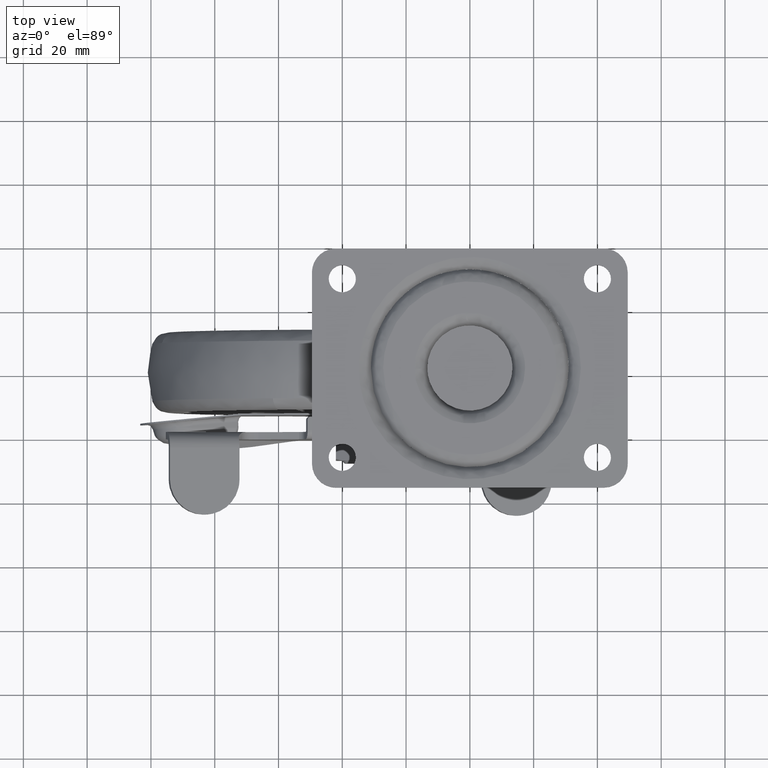
[diagram: clean part render]
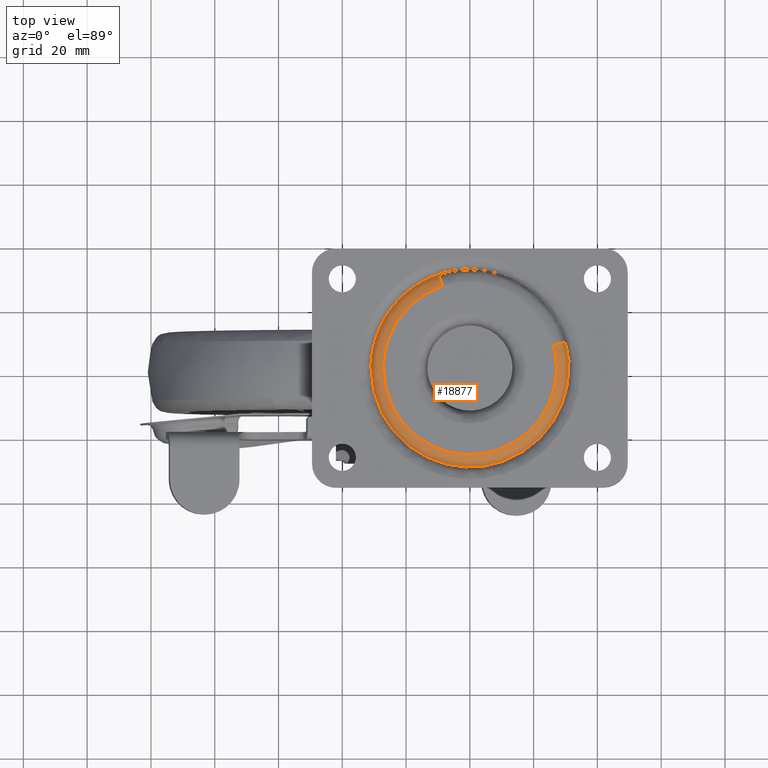
[diagram: same view with one face highlighted and labeled with its STEP entity id]
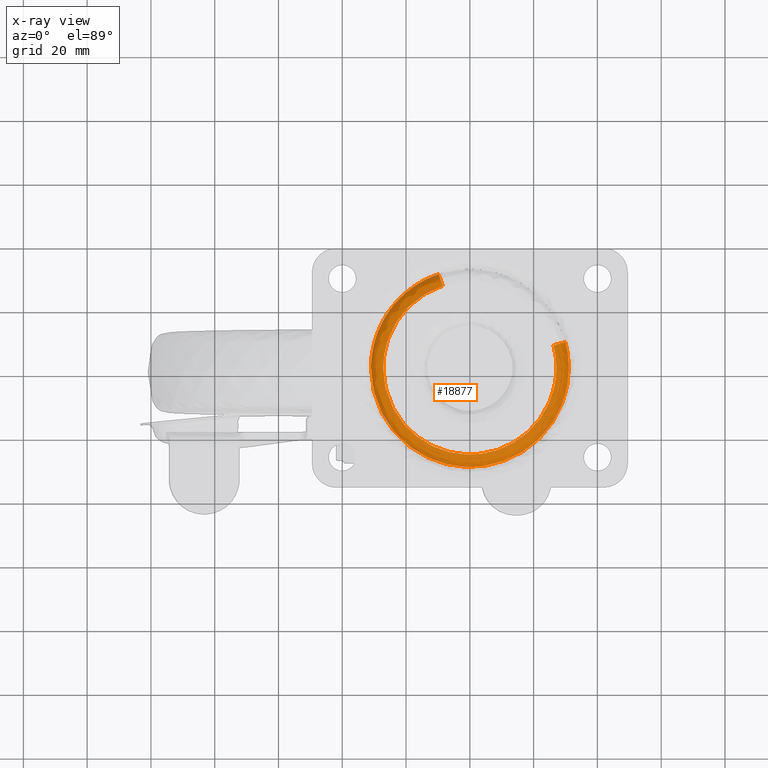
[diagram: x-ray of the same camera — body ghosted, the highlighted face saturated]
A machine part, top view. The second image highlights one B-rep face of the part: STEP entity #18877.
The next image is the same camera in x-ray: the body ghosted, the highlighted face saturated — about 0% of this face is hidden behind the body in this view.
In plain terms, the highlighted face is a freeform B-spline surface patch.
Its self-contained STEP definition (entity closure, byte-faithful):
#18722=CARTESIAN_POINT('',(-9.802953998279872,29.471057452146862,-3.130439594061851));
#18723=CARTESIAN_POINT('',(-37.634048480728175,20.213604122682199,-3.130439594061850));
#18724=CARTESIAN_POINT('',(-29.983472111068334,-8.101390905574176,-3.130439594061850));
#18725=CARTESIAN_POINT('',(-21.882081205494153,-38.084863016642508,-3.130439594061850));
#18726=CARTESIAN_POINT('',(8.101390905574174,-29.983472111068334,-3.130439594061850));
#18727=CARTESIAN_POINT('',(38.084863016642508,-21.882081205494138,-3.130439594061850));
#18728=CARTESIAN_POINT('',(29.983472111068341,8.101390905574156,-3.130439594061850));
#18729=CARTESIAN_POINT('',(-9.569151849163472,28.768167632378866,0.195560131003921));
#18730=CARTESIAN_POINT('',(-36.736469912442651,19.731506166688479,0.195560131003921));
#18731=CARTESIAN_POINT('',(-29.268361113019232,-7.908171330649346,0.195560131003922));
#18732=CARTESIAN_POINT('',(-21.360189782369876,-37.176532443668570,0.195560131003921));
#18733=CARTESIAN_POINT('',(7.908171330649345,-29.268361113019232,0.195560131003922));
#18734=CARTESIAN_POINT('',(37.176532443668570,-21.360189782369858,0.195560131003921));
#18735=CARTESIAN_POINT('',(29.268361113019232,7.908171330649330,0.195560131003922));
#18736=CARTESIAN_POINT('',(-8.495559464767652,25.540579004882673,-0.007079348434209));
#18737=CARTESIAN_POINT('',(-32.614893105086153,17.517768200447730,-0.007079348434209));
#18738=CARTESIAN_POINT('',(-25.984654250594296,-7.020929425733320,-0.007079348434209));
#18739=CARTESIAN_POINT('',(-18.963724824860986,-33.005583676327625,-0.007079348434209));
#18740=CARTESIAN_POINT('',(7.020929425733318,-25.984654250594296,-0.007079348434209));
#18741=CARTESIAN_POINT('',(33.005583676327639,-18.963724824860968,-0.007079348434209));
#18742=CARTESIAN_POINT('',(25.984654250594307,7.020929425733304,-0.007079348434209));
#18750=(BOUNDED_SURFACE()B_SPLINE_SURFACE(2,2,((#18722,#18729,#18736),(#18723,#18730,#18737),(#18724,#18731,#18738),(#18725,#18732,#18739),(#18726,#18733,#18740),(#18727,#18734,#18741),(#18728,#18735,#18742)),.UNSPECIFIED.,.F.,.F.,.U.)B_SPLINE_SURFACE_WITH_KNOTS((3,2,2,3),(3,3),(0.0,49.401305697223783,100.860999131831900,152.320692566439990),(0.0,5.891097441082348),.UNSPECIFIED.)GEOMETRIC_REPRESENTATION_ITEM()RATIONAL_B_SPLINE_SURFACE(((0.898665265390626,0.684370891272393,0.899388075884291),(0.660846023765494,0.503261670051997,0.661377552532734),(0.919345199444986,0.700119519204601,0.920084643132252),(0.650075224778849,0.495059259670639,0.650598090424420),(0.919345199444986,0.700119519204601,0.920084643132252),(0.650075224778849,0.495059259670639,0.650598090424420),(0.919345199444986,0.700119519204601,0.920084643132252)))REPRESENTATION_ITEM('')SURFACE());
#18751=CARTESIAN_POINT('',(-8.570639329479812,25.766294947004990,-6.302756E-016));
#18752=VERTEX_POINT('',#18751);
#18753=CARTESIAN_POINT('',(-27.154333237034852,0.0,0.0));
#18754=VERTEX_POINT('',#18753);
#18755=CARTESIAN_POINT('',(-8.570639329479812,25.766294947004994,-6.302756E-016));
#18756=CARTESIAN_POINT('',(-27.154333237034844,19.584803259646659,0.0));
#18757=CARTESIAN_POINT('',(-27.154333237034852,0.0,0.0));
#18765=(BOUNDED_CURVE()B_SPLINE_CURVE(2,(#18755,#18756,#18757),.UNSPECIFIED.,.F.,.U.)B_SPLINE_CURVE_WITH_KNOTS((3,3),(0.803659303335559,1.0),.UNSPECIFIED.)CURVE()GEOMETRIC_REPRESENTATION_ITEM()RATIONAL_B_SPLINE_CURVE((0.901255104924515,0.769972565479505,1.0))REPRESENTATION_ITEM(''));
#18766=EDGE_CURVE('',#18752,#18754,#18765,.T.);
#18767=ORIENTED_EDGE('',*,*,#18766,.F.);
#18768=CARTESIAN_POINT('',(-9.784435391543754,29.415384139363809,-2.899614999866334));
#18769=VERTEX_POINT('',#18768);
#18770=CARTESIAN_POINT('',(-9.784435391543754,29.415384139363812,-2.899614999866335));
#18771=CARTESIAN_POINT('',(-9.522564380079372,28.628109648003093,-7.334547E-009));
#18772=CARTESIAN_POINT('',(-8.570639329479812,25.766294947004990,-6.302756E-016));
#18780=(BOUNDED_CURVE()B_SPLINE_CURVE(2,(#18770,#18771,#18772),.UNSPECIFIED.,.F.,.U.)B_SPLINE_CURVE_WITH_KNOTS((3,3),(-1.689710131285980,-0.307730784968661),.UNSPECIFIED.)CURVE()GEOMETRIC_REPRESENTATION_ITEM()RATIONAL_B_SPLINE_CURVE((0.880087032894236,0.702981965780210,0.880744159240382))REPRESENTATION_ITEM(''));
#18781=EDGE_CURVE('',#18769,#18752,#18780,.T.);
#18782=ORIENTED_EDGE('',*,*,#18781,.F.);
#18783=CARTESIAN_POINT('',(-31.0,0.0,-2.899614999999910));
#18784=VERTEX_POINT('',#18783);
#18785=CARTESIAN_POINT('',(-9.784435391543754,29.415384139363812,-2.899614999866335));
#18786=CARTESIAN_POINT('',(-30.999999999999996,22.358453649431009,-2.899614999999911));
#18787=CARTESIAN_POINT('',(-31.0,0.0,-2.899614999999910));
#18795=(BOUNDED_CURVE()B_SPLINE_CURVE(2,(#18785,#18786,#18787),.UNSPECIFIED.,.F.,.U.)B_SPLINE_CURVE_WITH_KNOTS((3,3),(0.803659303332471,1.0),.UNSPECIFIED.)CURVE()GEOMETRIC_REPRESENTATION_ITEM()RATIONAL_B_SPLINE_CURVE((0.901255104928644,0.769972565475887,1.0))REPRESENTATION_ITEM(''));
#18796=EDGE_CURVE('',#18769,#18784,#18795,.T.);
#18797=ORIENTED_EDGE('',*,*,#18796,.T.);
#18798=CARTESIAN_POINT('',(31.0,0.0,-2.899614999999910));
#18799=VERTEX_POINT('',#18798);
#18800=CARTESIAN_POINT('',(-31.0,0.0,-2.899614999999910));
#18801=CARTESIAN_POINT('',(-31.000000000000007,-31.000000000000007,-2.899614999999911));
#18802=CARTESIAN_POINT('',(0.0,-31.0,-2.899614999999910));
#18803=CARTESIAN_POINT('',(31.000000000000007,-31.000000000000007,-2.899614999999911));
#18804=CARTESIAN_POINT('',(31.0,0.0,-2.899614999999910));
#18812=(BOUNDED_CURVE()B_SPLINE_CURVE(2,(#18800,#18801,#18802,#18803,#18804),.UNSPECIFIED.,.F.,.U.)B_SPLINE_CURVE_WITH_KNOTS((3,2,3),(0.0,0.250000000000000,0.500000000000000),.UNSPECIFIED.)CURVE()GEOMETRIC_REPRESENTATION_ITEM()RATIONAL_B_SPLINE_CURVE((1.0,0.707106781186548,1.0,0.707106781186548,1.0))REPRESENTATION_ITEM(''));
#18813=EDGE_CURVE('',#18784,#18799,#18812,.T.);
#18814=ORIENTED_EDGE('',*,*,#18813,.T.);
#18815=CARTESIAN_POINT('',(29.926830803672090,8.086086695066445,-2.899614999534751));
#18816=VERTEX_POINT('',#18815);
#18817=CARTESIAN_POINT('',(31.0,0.0,-2.899614999999910));
#18818=CARTESIAN_POINT('',(31.0,4.114257778465865,-2.899614999999911));
#18819=CARTESIAN_POINT('',(29.926830803672093,8.086086695066445,-2.899614999534751));
#18827=(BOUNDED_CURVE()B_SPLINE_CURVE(2,(#18817,#18818,#18819),.UNSPECIFIED.,.F.,.U.)B_SPLINE_CURVE_WITH_KNOTS((3,3),(0.500000000000000,0.544477792330369),.UNSPECIFIED.)CURVE()GEOMETRIC_REPRESENTATION_ITEM()RATIONAL_B_SPLINE_CURVE((1.0,0.947891024954568,0.914323587274089))REPRESENTATION_ITEM(''));
#18828=EDGE_CURVE('',#18799,#18816,#18827,.T.);
#18829=ORIENTED_EDGE('',*,*,#18828,.T.);
#18830=CARTESIAN_POINT('',(26.214294730024950,7.082977186731069,-6.160980E-016));
#18831=VERTEX_POINT('',#18830);
#18832=CARTESIAN_POINT('',(29.926830803672090,8.086086695066445,-2.899614999534751));
#18833=CARTESIAN_POINT('',(29.125867934971883,7.869670354762938,-0.000000013118027));
#18834=CARTESIAN_POINT('',(26.214294730024957,7.082977186731070,-6.160980E-016));
#18842=(BOUNDED_CURVE()B_SPLINE_CURVE(2,(#18832,#18833,#18834),.UNSPECIFIED.,.F.,.U.)B_SPLINE_CURVE_WITH_KNOTS((3,3),(-1.689710131088131,-0.307730787170417),.UNSPECIFIED.)CURVE()GEOMETRIC_REPRESENTATION_ITEM()RATIONAL_B_SPLINE_CURVE((0.900339447732834,0.719158868945840,0.901011695232444))REPRESENTATION_ITEM(''));
#18843=EDGE_CURVE('',#18816,#18831,#18842,.T.);
#18844=ORIENTED_EDGE('',*,*,#18843,.T.);
#18845=CARTESIAN_POINT('',(27.154333237034852,0.0,0.0));
#18846=VERTEX_POINT('',#18845);
#18847=CARTESIAN_POINT('',(27.154333237034852,0.0,0.0));
#18848=CARTESIAN_POINT('',(27.154333237034844,3.603868605044591,0.0));
#18849=CARTESIAN_POINT('',(26.214294730024964,7.082977186731069,-6.160980E-016));
#18857=(BOUNDED_CURVE()B_SPLINE_CURVE(2,(#18847,#18848,#18849),.UNSPECIFIED.,.F.,.U.)B_SPLINE_CURVE_WITH_KNOTS((3,3),(0.500000000000000,0.544477792336730),.UNSPECIFIED.)CURVE()GEOMETRIC_REPRESENTATION_ITEM()RATIONAL_B_SPLINE_CURVE((1.0,0.947891024947115,0.914323587264487))REPRESENTATION_ITEM(''));
#18858=EDGE_CURVE('',#18846,#18831,#18857,.T.);
#18859=ORIENTED_EDGE('',*,*,#18858,.F.);
#18860=CARTESIAN_POINT('',(-27.154333237034852,0.0,0.0));
#18861=CARTESIAN_POINT('',(-27.154333237034852,-27.154333237034852,0.0));
#18862=CARTESIAN_POINT('',(0.0,-27.154333237034852,0.0));
#18863=CARTESIAN_POINT('',(27.154333237034852,-27.154333237034852,0.0));
#18864=CARTESIAN_POINT('',(27.154333237034852,0.0,0.0));
#18872=(BOUNDED_CURVE()B_SPLINE_CURVE(2,(#18860,#18861,#18862,#18863,#18864),.UNSPECIFIED.,.F.,.U.)B_SPLINE_CURVE_WITH_KNOTS((3,2,3),(0.0,0.250000000000000,0.500000000000000),.UNSPECIFIED.)CURVE()GEOMETRIC_REPRESENTATION_ITEM()RATIONAL_B_SPLINE_CURVE((1.0,0.707106781186548,1.0,0.707106781186548,1.0))REPRESENTATION_ITEM(''));
#18873=EDGE_CURVE('',#18754,#18846,#18872,.T.);
#18874=ORIENTED_EDGE('',*,*,#18873,.F.);
#18875=EDGE_LOOP('',(#18767,#18782,#18797,#18814,#18829,#18844,#18859,#18874));
#18876=FACE_OUTER_BOUND('',#18875,.T.);
#18877=ADVANCED_FACE('',(#18876),#18750,.T.);